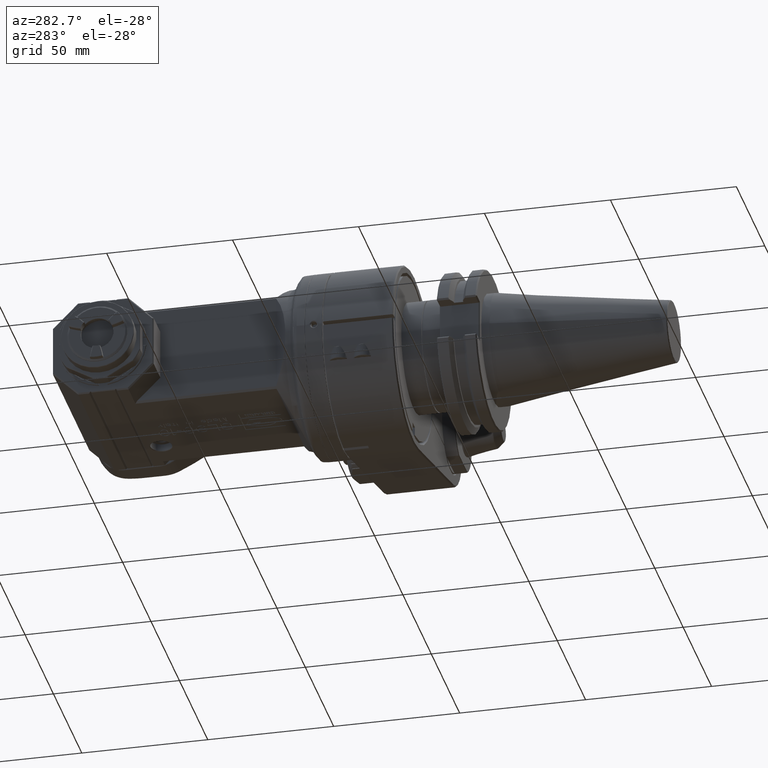
[diagram: clean part render]
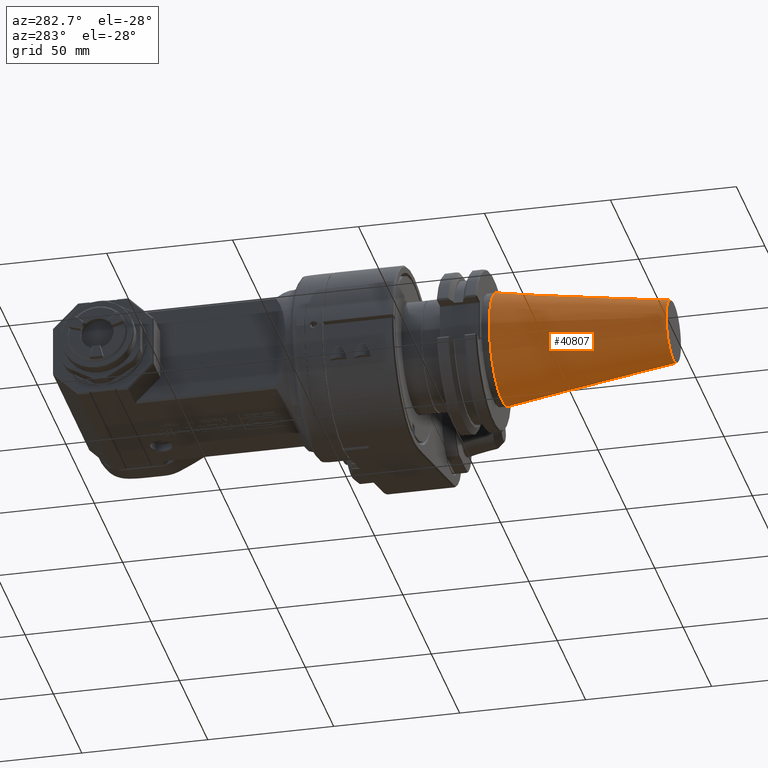
[diagram: same view with one face highlighted and labeled with its STEP entity id]
A machine part, auxiliary view. The second image highlights one B-rep face of the part: STEP entity #40807.
In plain terms, the highlighted conical surface has half-angle 8.3 deg.
Its self-contained STEP definition (entity closure, byte-faithful):
#348=CONICAL_SURFACE('',#43747,17.26696580183,0.144862327915529);
#1844=CIRCLE('',#43745,22.225);
#1845=CIRCLE('',#43746,22.225);
#1846=CIRCLE('',#43748,12.30893160366);
#1847=CIRCLE('',#43749,12.30893160366);
#3995=FACE_OUTER_BOUND('',#6290,.T.);
#6290=EDGE_LOOP('',(#36925,#36926,#36927,#36928,#36929,#36930));
#10955=LINE('',#72078,#15614);
#15614=VECTOR('',#54151,17.26696580183);
#19443=VERTEX_POINT('',#72071);
#19444=VERTEX_POINT('',#72072);
#19445=VERTEX_POINT('',#72077);
#19446=VERTEX_POINT('',#72079);
#25275=EDGE_CURVE('',#19443,#19444,#1844,.T.);
#25276=EDGE_CURVE('',#19444,#19443,#1845,.T.);
#25278=EDGE_CURVE('',#19444,#19445,#10955,.T.);
#25279=EDGE_CURVE('',#19446,#19445,#1846,.T.);
#25280=EDGE_CURVE('',#19445,#19446,#1847,.T.);
#36925=ORIENTED_EDGE('',*,*,#25275,.F.);
#36926=ORIENTED_EDGE('',*,*,#25276,.F.);
#36927=ORIENTED_EDGE('',*,*,#25278,.T.);
#36928=ORIENTED_EDGE('',*,*,#25279,.F.);
#36929=ORIENTED_EDGE('',*,*,#25280,.F.);
#36930=ORIENTED_EDGE('',*,*,#25278,.F.);
#40807=ADVANCED_FACE('',(#3995),#348,.T.);
#43745=AXIS2_PLACEMENT_3D('',#72073,#54144,#54145);
#43746=AXIS2_PLACEMENT_3D('',#72074,#54146,#54147);
#43747=AXIS2_PLACEMENT_3D('',#72076,#54149,#54150);
#43748=AXIS2_PLACEMENT_3D('',#72080,#54152,#54153);
#43749=AXIS2_PLACEMENT_3D('',#72081,#54154,#54155);
#54144=DIRECTION('center_axis',(0.,1.,0.));
#54145=DIRECTION('ref_axis',(-1.,0.,0.));
#54146=DIRECTION('center_axis',(0.,1.,0.));
#54147=DIRECTION('ref_axis',(-1.,0.,0.));
#54149=DIRECTION('center_axis',(0.,1.,0.));
#54150=DIRECTION('ref_axis',(1.,0.,0.));
#54151=DIRECTION('',(0.144356201000973,-0.989525789068969,-1.76785359492914E-17));
#54152=DIRECTION('center_axis',(0.,-1.,0.));
#54153=DIRECTION('ref_axis',(1.,0.,0.));
#54154=DIRECTION('center_axis',(0.,-1.,0.));
#54155=DIRECTION('ref_axis',(1.,0.,0.));
#72071=CARTESIAN_POINT('',(22.225,-42.1,0.));
#72072=CARTESIAN_POINT('',(-22.2249999999998,-42.1,2.72177751110496E-15));
#72073=CARTESIAN_POINT('Origin',(0.,-42.1,0.));
#72074=CARTESIAN_POINT('Origin',(0.,-42.1,0.));
#72076=CARTESIAN_POINT('Origin',(-1.182317416374E-14,-76.08608905025,0.));
#72077=CARTESIAN_POINT('',(-12.30893160366,-110.0721781005,0.));
#72078=CARTESIAN_POINT('',(-17.26696580183,-76.08608905025,2.11459344001979E-15));
#72079=CARTESIAN_POINT('',(-12.30816221712,-110.0721781005,0.137622892860374));
#72080=CARTESIAN_POINT('Origin',(-1.598526968083E-14,-110.0721781005,0.));
#72081=CARTESIAN_POINT('Origin',(-1.598526968083E-14,-110.0721781005,0.));